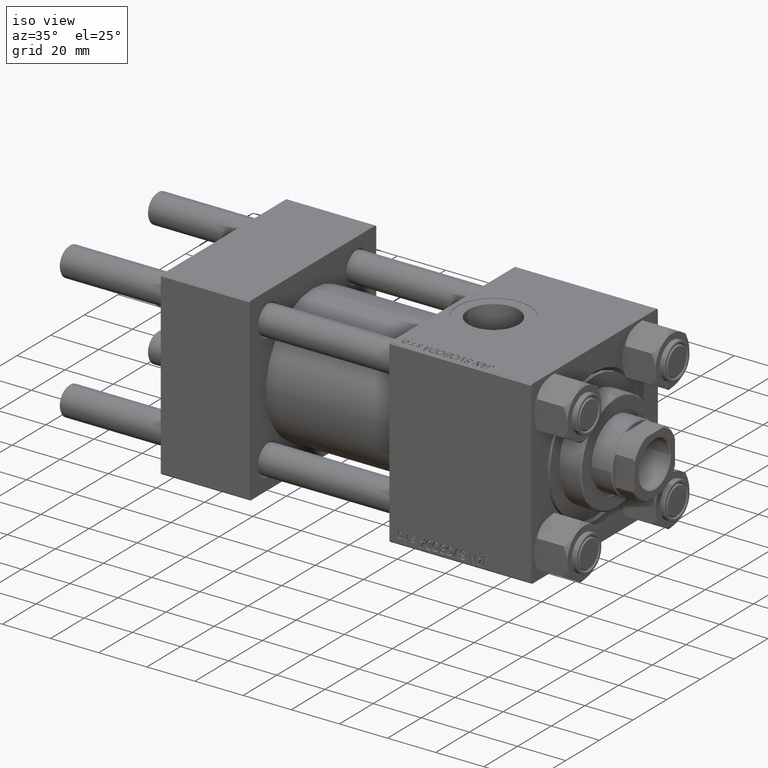
[diagram: clean part render]
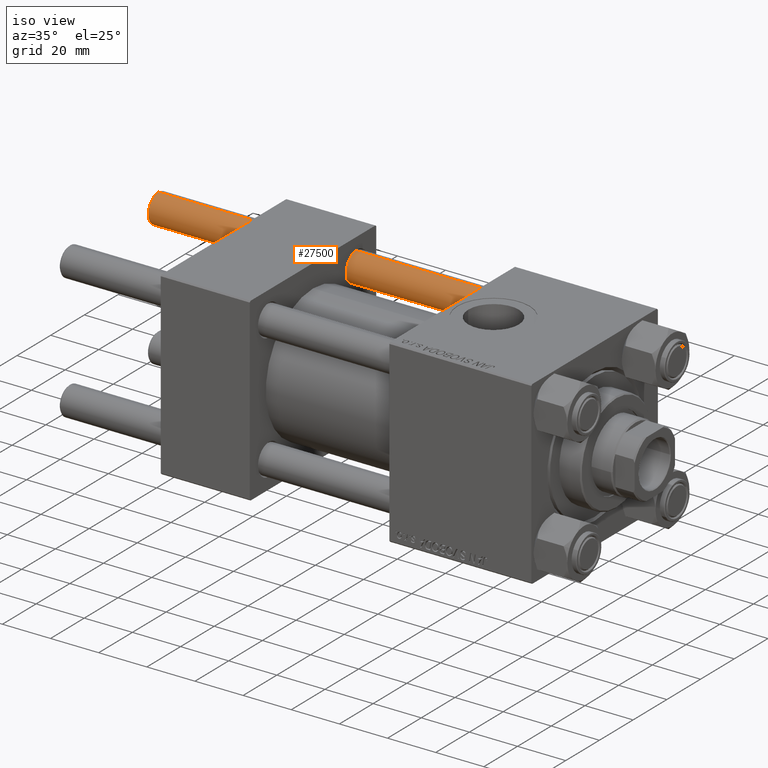
[diagram: same view with one face highlighted and labeled with its STEP entity id]
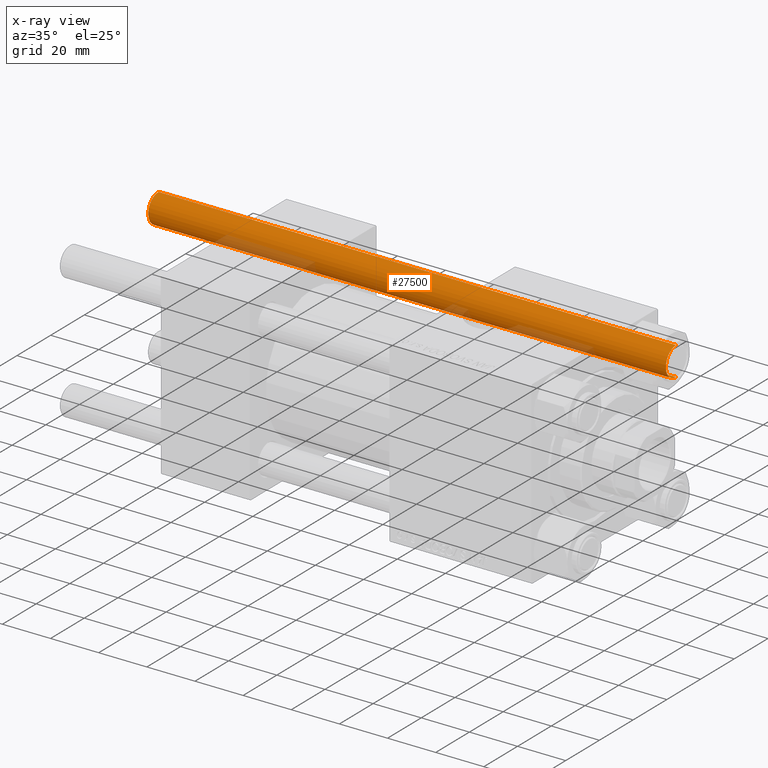
[diagram: x-ray of the same camera — body ghosted, the highlighted face saturated]
A machine part, iso view. The second image highlights one B-rep face of the part: STEP entity #27500.
The next image is the same camera in x-ray: the body ghosted, the highlighted face saturated — about 11% of this face is hidden behind the body in this view.
In plain terms, the highlighted cylindrical surface (edge-blend (fillet) strip) has radius 6 mm, axis along (-1, -0, -0).
Its self-contained STEP definition (entity closure, byte-faithful):
#3331 = FACE_OUTER_BOUND ( 'NONE', #11848, .T. ) ;
#3581 = CARTESIAN_POINT ( 'NONE',  ( 0.000000000000000000, 0.000000000000000000, 216.0000000000000000 ) ) ;
#4614 = DIRECTION ( 'NONE',  ( -0.000000000000000000, -0.000000000000000000, -1.000000000000000000 ) ) ;
#4711 = AXIS2_PLACEMENT_3D ( 'NONE', #43526, #5290, #40012 ) ;
#5290 = DIRECTION ( 'NONE',  ( -0.000000000000000000, -0.000000000000000000, 1.000000000000000000 ) ) ;
#7073 = VERTEX_POINT ( 'NONE', #27319 ) ;
#8336 = DIRECTION ( 'NONE',  ( -0.000000000000000000, -0.000000000000000000, -1.000000000000000000 ) ) ;
#8395 = CARTESIAN_POINT ( 'NONE',  ( -6.000000000000000888, 0.000000000000000000, 0.5000000000000004441 ) ) ;
#8807 = ORIENTED_EDGE ( 'NONE', *, *, #8874, .T. ) ;
#8874 = EDGE_CURVE ( 'NONE', #14418, #38751, #15959, .T. ) ;
#9124 = CARTESIAN_POINT ( 'NONE',  ( -6.000000000000000888, 0.000000000000000000, 216.0000000000000000 ) ) ;
#10184 = EDGE_CURVE ( 'NONE', #16560, #7073, #40915, .T. ) ;
#11848 = EDGE_LOOP ( 'NONE', ( #20298, #29121, #25238, #8807 ) ) ;
#13640 = EDGE_CURVE ( 'NONE', #7073, #14418, #15701, .T. ) ;
#14418 = VERTEX_POINT ( 'NONE', #8395 ) ;
#15701 = LINE ( 'NONE', #9124, #43450 ) ;
#15959 = CIRCLE ( 'NONE', #4711, 6.000000000000000888 ) ;
#16560 = VERTEX_POINT ( 'NONE', #23132 ) ;
#18679 = CYLINDRICAL_SURFACE ( 'NONE', #49383, 6.000000000000000888 ) ;
#20298 = ORIENTED_EDGE ( 'NONE', *, *, #36758, .F. ) ;
#22222 = VECTOR ( 'NONE', #43688, 1000.000000000000000 ) ;
#23132 = CARTESIAN_POINT ( 'NONE',  ( 6.000000000000000888, 7.347880794884120722E-16, 215.5000000000000284 ) ) ;
#23682 = DIRECTION ( 'NONE',  ( -1.000000000000000000, 0.000000000000000000, 0.000000000000000000 ) ) ;
#25238 = ORIENTED_EDGE ( 'NONE', *, *, #13640, .T. ) ;
#26455 = AXIS2_PLACEMENT_3D ( 'NONE', #38122, #46394, #45659 ) ;
#27319 = CARTESIAN_POINT ( 'NONE',  ( -6.000000000000000888, 0.000000000000000000, 215.5000000000000284 ) ) ;
#27500 = ADVANCED_FACE ( 'NONE', ( #3331 ), #18679, .T. ) ;
#29121 = ORIENTED_EDGE ( 'NONE', *, *, #10184, .T. ) ;
#32619 = CARTESIAN_POINT ( 'NONE',  ( 6.000000000000000888, 7.347880794884120722E-16, 216.0000000000000000 ) ) ;
#36392 = LINE ( 'NONE', #32619, #22222 ) ;
#36758 = EDGE_CURVE ( 'NONE', #16560, #38751, #36392, .T. ) ;
#38122 = CARTESIAN_POINT ( 'NONE',  ( 0.000000000000000000, 0.000000000000000000, 215.5000000000000284 ) ) ;
#38751 = VERTEX_POINT ( 'NONE', #48777 ) ;
#40012 = DIRECTION ( 'NONE',  ( 1.000000000000000000, 0.000000000000000000, 0.000000000000000000 ) ) ;
#40915 = CIRCLE ( 'NONE', #26455, 6.000000000000000888 ) ;
#43450 = VECTOR ( 'NONE', #4614, 1000.000000000000000 ) ;
#43526 = CARTESIAN_POINT ( 'NONE',  ( 0.000000000000000000, 0.000000000000000000, 0.5000000000000004441 ) ) ;
#43688 = DIRECTION ( 'NONE',  ( -0.000000000000000000, -0.000000000000000000, -1.000000000000000000 ) ) ;
#45659 = DIRECTION ( 'NONE',  ( 1.000000000000000000, 0.000000000000000000, 0.000000000000000000 ) ) ;
#46394 = DIRECTION ( 'NONE',  ( 0.000000000000000000, 0.000000000000000000, -1.000000000000000000 ) ) ;
#48777 = CARTESIAN_POINT ( 'NONE',  ( 6.000000000000000888, 7.347880794884120722E-16, 0.5000000000000004441 ) ) ;
#49383 = AXIS2_PLACEMENT_3D ( 'NONE', #3581, #8336, #23682 ) ;